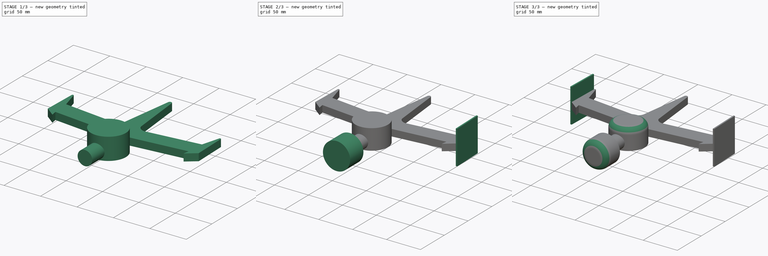
[diagram: build sequence overview — one tinted view per stage of 3, left to right]
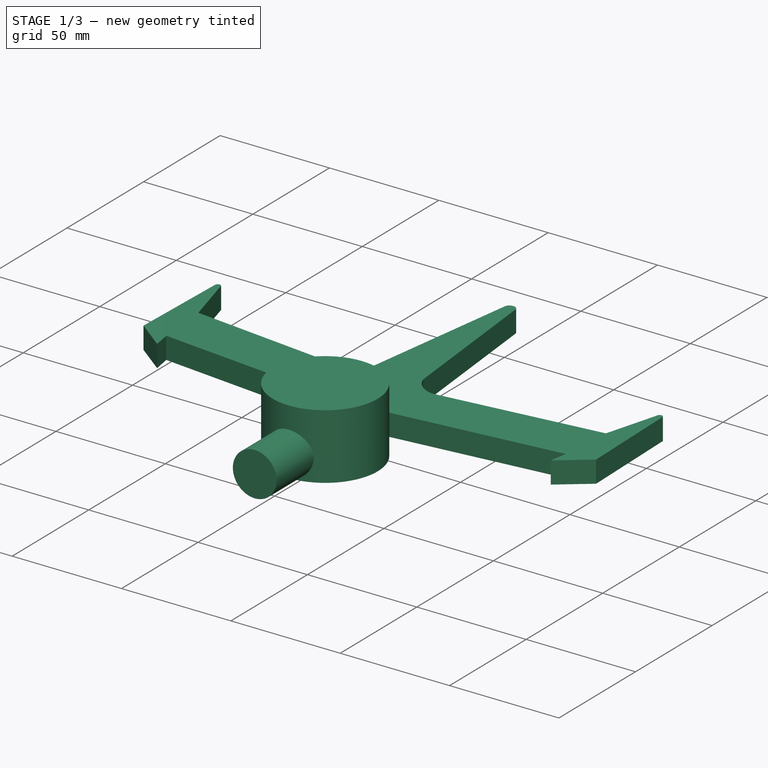
[diagram: stage 1 of 3 — iso view after this stage's code; geometry added in this stage tinted green]
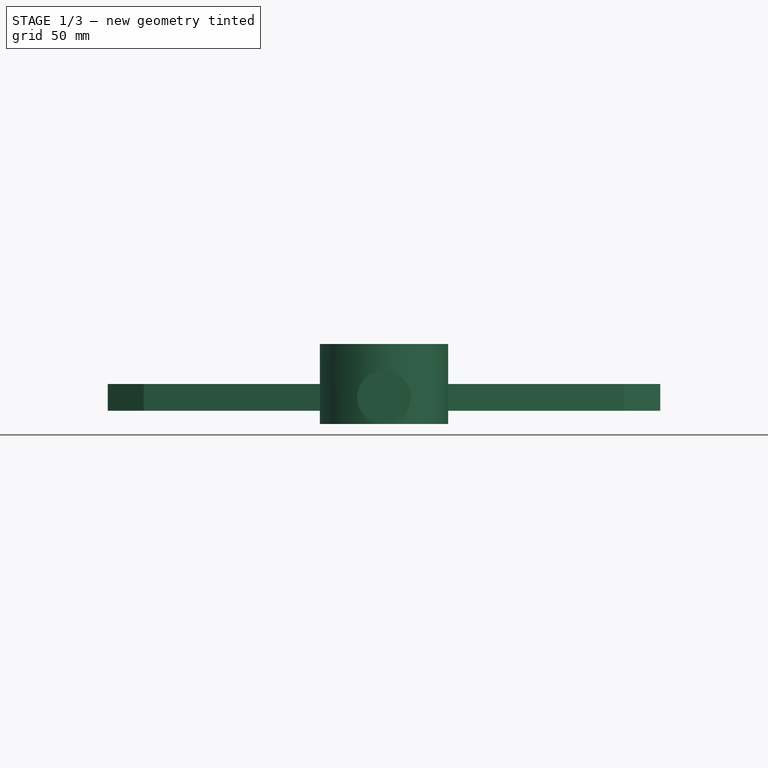
[diagram: stage 1 of 3 — front view after this stage's code; geometry added in this stage tinted green]
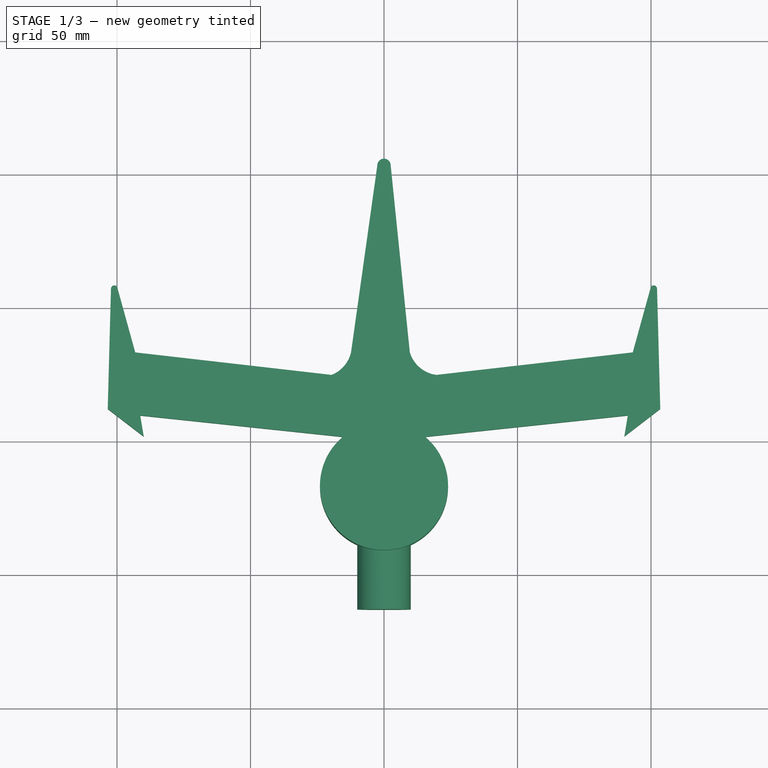
[diagram: stage 1 of 3 — top view after this stage's code; geometry added in this stage tinted green]
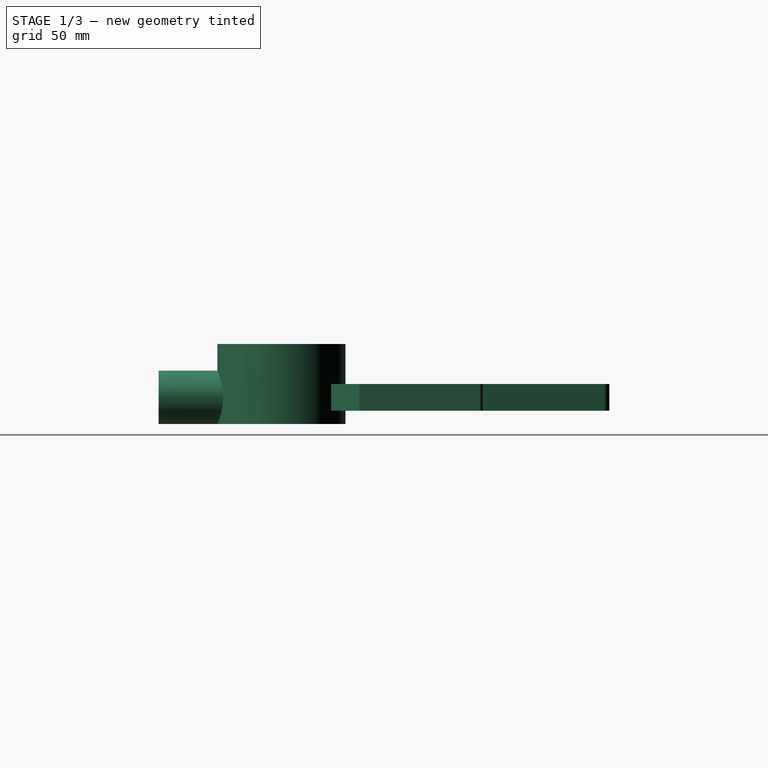
[diagram: stage 1 of 3 — right view after this stage's code; geometry added in this stage tinted green]
FCSTD DOCUMENT  (FreeCAD 1.0R39109 (Git))
Label: playership
License: All rights reserved
objects: Sketcher::SketchObject×6, PartDesign::Pad×6, PartDesign::Fillet×2, Image::ImagePlane×1, PartDesign::Plane×1, PartDesign::Body×1, App::Part×1
note: 38 computed .brp shape members not serialized (recipe doc carries the construction recipe); baked Part::Feature solids carry a one-line shape summary decoded from their .brp

FEATURE [Sketcher::SketchObject] Sketch
  ArcFitTolerance = 1e-06
  AttachmentSupport = -> [XY_Plane001]
  FullyConstrained = true
  MakeInternals = false
  MapMode = 5
  sketch-geometry (19):
    g0: LineSegment StartX=-91.3107 StartY=9.66321 StartZ=0 EndX=0 EndY=0 EndZ=0
    g1: LineSegment StartX=-91.3107 StartY=9.66321 StartZ=0 EndX=-89.9959 EndY=1.77198 EndZ=0
    g2: LineSegment StartX=-89.9959 StartY=1.77198 StartZ=0 EndX=-103.476 EndY=12.1306 EndZ=0
    g3: LineSegment StartX=-103.476 StartY=12.1306 StartZ=0 EndX=-102.265 EndY=57.1143 EndZ=0
    g4: LineSegment StartX=-99.7654 StartY=57.1143 StartZ=0 EndX=-93.1683 EndY=33.2597 EndZ=0
    g5: LineSegment StartX=-93.1683 StartY=33.2597 StartZ=0 EndX=-19.65 EndY=24.8301 EndZ=0
    g6: LineSegment StartX=-12.3363 StartY=33.3301 StartZ=0 EndX=-2.5 EndY=103.33 EndZ=0
    g7: LineSegment StartX=2.5 StartY=103.33 StartZ=0 EndX=9.66371 EndY=33.3301 EndZ=0
    g8: LineSegment StartX=19.65 StartY=24.8301 StartZ=0 EndX=93.1683 EndY=33.2597 EndZ=0
    g9: LineSegment StartX=93.1683 StartY=33.2597 StartZ=0 EndX=99.7654 EndY=57.1143 EndZ=0
    g10: ArcOfCircle CenterX=-101.015 CenterY=57.1143 CenterZ=0 NormalX=0 NormalY=0 NormalZ=1 AngleXU=0 Radius=1.25 StartAngle=1.9e-15 EndAngle=3.14159
    g11: ArcOfCircle CenterX=0 CenterY=103.33 CenterZ=0 NormalX=0 NormalY=0 NormalZ=1 AngleXU=0 Radius=2.5 StartAngle=1e-15 EndAngle=3.14159
    g12: ArcOfCircle CenterX=-24.0355 CenterY=36 CenterZ=0 NormalX=0 NormalY=0 NormalZ=1 AngleXU=0 Radius=12 StartAngle=5.08651 EndAngle=6.05881
    g13: ArcOfCircle CenterX=21.171 CenterY=36.7333 CenterZ=0 NormalX=0 NormalY=0 NormalZ=1 AngleXU=0 Radius=12 StartAngle=3.42914 EndAngle=4.5853
    g14: ArcOfCircle CenterX=101.015 CenterY=57.1143 CenterZ=0 NormalX=0 NormalY=0 NormalZ=1 AngleXU=0 Radius=1.25 StartAngle=0 EndAngle=3.14159
    g15: LineSegment StartX=102.265 StartY=57.1143 StartZ=0 EndX=103.476 EndY=12.1306 EndZ=0
    g16: LineSegment StartX=103.476 StartY=12.1306 StartZ=0 EndX=89.9959 EndY=1.77198 EndZ=0
    g17: LineSegment StartX=89.9959 StartY=1.77198 StartZ=0 EndX=91.3107 EndY=9.66321 EndZ=0
    g18: LineSegment StartX=91.3107 StartY=9.66321 StartZ=0 EndX=0 EndY=0 EndZ=0
  constraints (61):
    c: Coincident(g1,g0)
    c: Coincident(g2,g1)
    c: Coincident(g5,g4)
    c: Coincident(g10,g3)
    c: Coincident(g10,g4)
    c: Coincident(g11,g6)
    c: Coincident(g11,g7)
    c: Horizontal(g6,g7)
    c: Horizontal(g7,g11)
    c: Vertical(g0,g11)
    c: Coincident(g12,g5)
    c: Coincident(g12,g6)
    c: Coincident(g13,g8)
    c: Coincident(g13,g7)
    c: Coincident(g14,g9)
    c: Horizontal(g9,g14)
    c: Horizontal(g14,g14)
    c: Coincident(g2,g3)
    c: Radius(g12) = 12
    c: Radius(g13) = 12
    c: DistanceX(g6,g7) = 22
    c: DistanceY(g5,g6) = 8.5
    c: DistanceY(g8,g7) = 8.5
    c: DistanceX(g5,g8) = 39.3
    c: DistanceY(g6,g6) = 70
    c: Angle(g5,g-1) = 0.114162
    c: Distance(g5) = 74
    c: Angle(g5,g4) = 1.95477
    c: Angle(g3,g4) = 0.296706
    c: Distance(g4) = 24.75
    c: Distance(g3) = 45
    c: Distance(g2) = 17
    c: Distance(g1) = 8
    c: Angle(g2,g3) = 2.19911
    c: Angle(g1,g2) = 0.750492
    c: Angle(g1,g0) = 1.30027
    c: Radius(g10) = 1.25
    c: Horizontal(g10,g4)
    c: Horizontal(g4,g3)
    c: DistanceY(g0,g12) = 36
    c: Angle(g8) = 0.114162
    c: Horizontal(g5,g8)
    c: Coincident(g8,g9)
    c: Distance(g8) = 74
    c: Angle(g9,g8) = 1.95477
    c: Radius(g14) = 1.25
    c: Coincident(g15,g14)
    c: Distance(g15) = 45
    c: Distance(g9) = 24.75
    c: Angle(g9,g15) = 0.296706
    c: Distance(g16) = 17
    c: Coincident(g16,g15)
    c: Angle(g15,g16) = 2.19911
    c: Distance(g17) = 8
    c: Coincident(g17,g16)
    c: Angle(g16,g17) = 0.750492
    c: Coincident(g18,g17)
    c: Coincident(g18,g0)
    c: Coincident(g0,g-1)
    c: Radius(g11) = 2.5
    c: DistanceX(g5,g0) = 19.65
FEATURE [Image::ImagePlane] topship
  XSize = 278.116
  YSize = 197.671
FEATURE [PartDesign::Pad] Pad
  Direction = (0,0,1)
  Length = 10
  Length2 = 10
  Profile = -> Sketch
  ReferenceAxis = -> Sketch [N_Axis]
  Refine = true
  Suppressed = false
  Type = 0
FEATURE [Sketcher::SketchObject] Sketch001
  ArcFitTolerance = 1e-06
  AttachmentSupport = -> [Pad]
  FullyConstrained = true
  MakeInternals = false
  MapMode = 5
  Placement = pos=(0,0,10) rot=(0,0,1;0rad)
  sketch-geometry (1):
    g0: Circle CenterX=0 CenterY=-17 CenterZ=0 NormalX=0 NormalY=0 NormalZ=1 AngleXU=0 Radius=24
  constraints (3):
    c: Radius(g0) = 24
    c: DistanceX(g-1,g0) = 0
    c: DistanceY(g0,g-1) = 17
FEATURE [PartDesign::Pad] Pad001
  BaseFeature = -> Pad
  Direction = (0,0,1)
  Length = 30
  Length2 = 10
  Midplane = true
  Profile = -> Sketch001
  ReferenceAxis = -> Sketch001 [N_Axis]
  Refine = true
  Suppressed = false
  Type = 0
FEATURE [PartDesign::Plane] DatumPlane
  AttachmentOffset = pos=(0,-38,0) rot=(1,0,0;1.5708rad)
  AttachmentSupport = -> [Pad001]
  Length = 227.296
  MapMode = 5
  Placement = pos=(0,-38,25) rot=(1,0,0;1.5708rad)
  ResizeMode = 0
  Width = 70.3446
FEATURE [Sketcher::SketchObject] Sketch002
  ArcFitTolerance = 1e-06
  AttachmentSupport = -> [DatumPlane]
  FullyConstrained = true
  MakeInternals = false
  MapMode = 5
  Placement = pos=(0,-38,25) rot=(1,0,0;1.5708rad)
  sketch-geometry (1):
    g0: Circle CenterX=0 CenterY=-20 CenterZ=0 NormalX=0 NormalY=0 NormalZ=1 AngleXU=0 Radius=10
  constraints (3):
    c: PointOnObject(g0,g-2)
    c: Radius(g0) = 10
    c: DistanceY(g0,g-1) = 20
FEATURE [PartDesign::Pad] Pad002
  BaseFeature = -> Pad001
  Direction = (0,-1,2e-16)
  Length = 25
  Length2 = 10
  Profile = -> Sketch002
  ReferenceAxis = -> Sketch002 [N_Axis]
  Refine = true
  Suppressed = false
  Type = 0
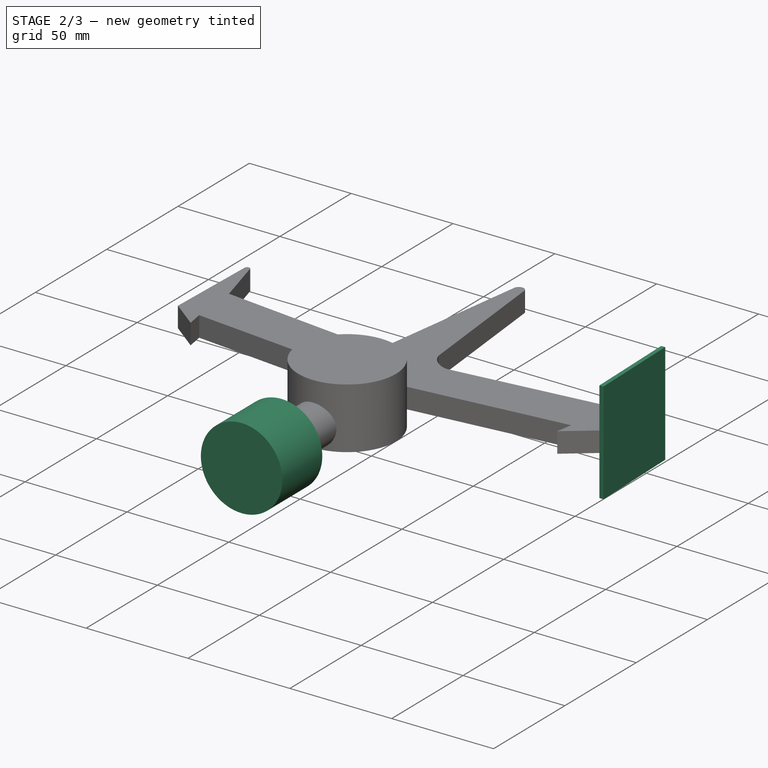
[diagram: stage 2 of 3 — iso view after this stage's code; geometry added in this stage tinted green]
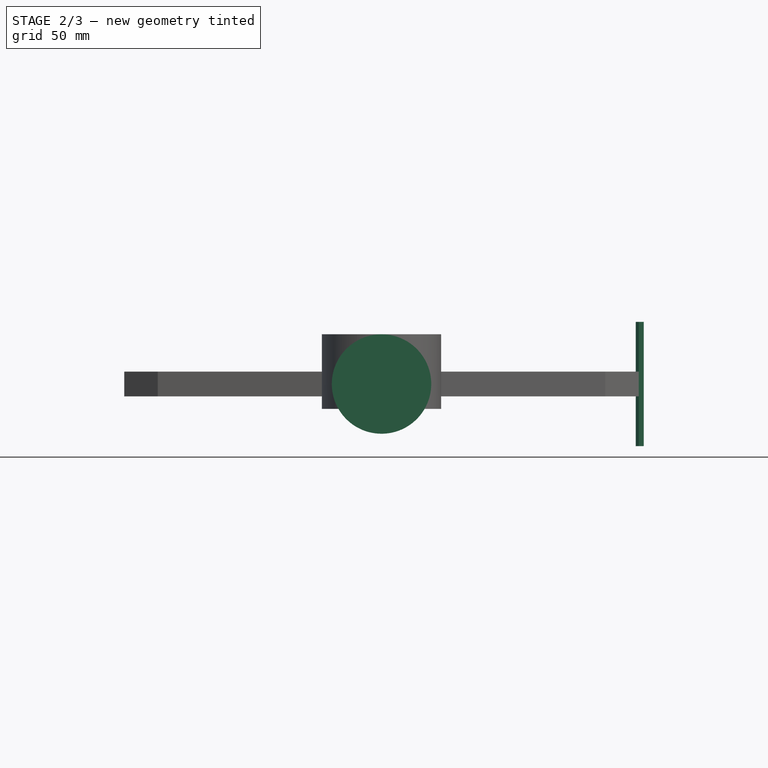
[diagram: stage 2 of 3 — front view after this stage's code; geometry added in this stage tinted green]
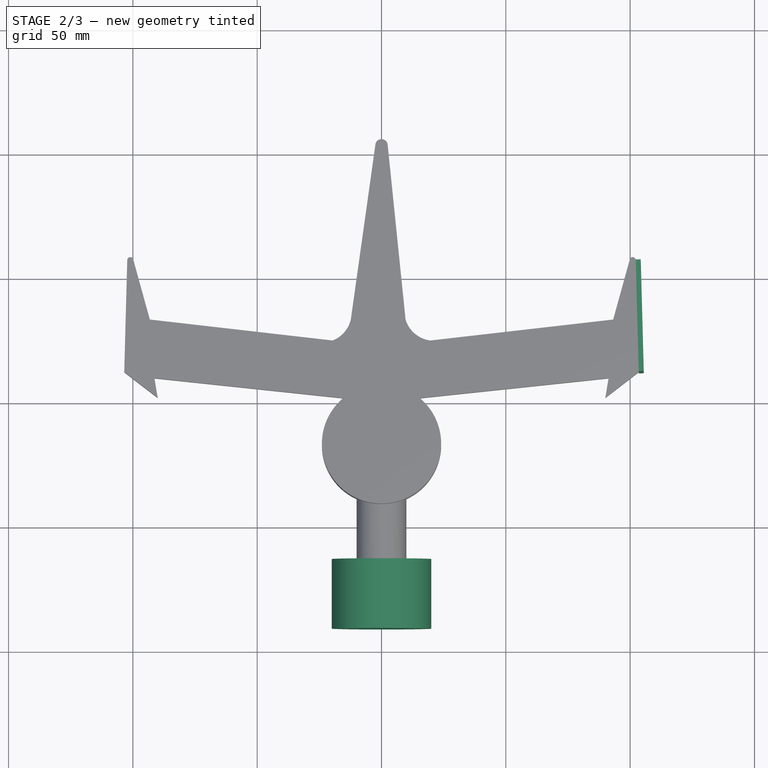
[diagram: stage 2 of 3 — top view after this stage's code; geometry added in this stage tinted green]
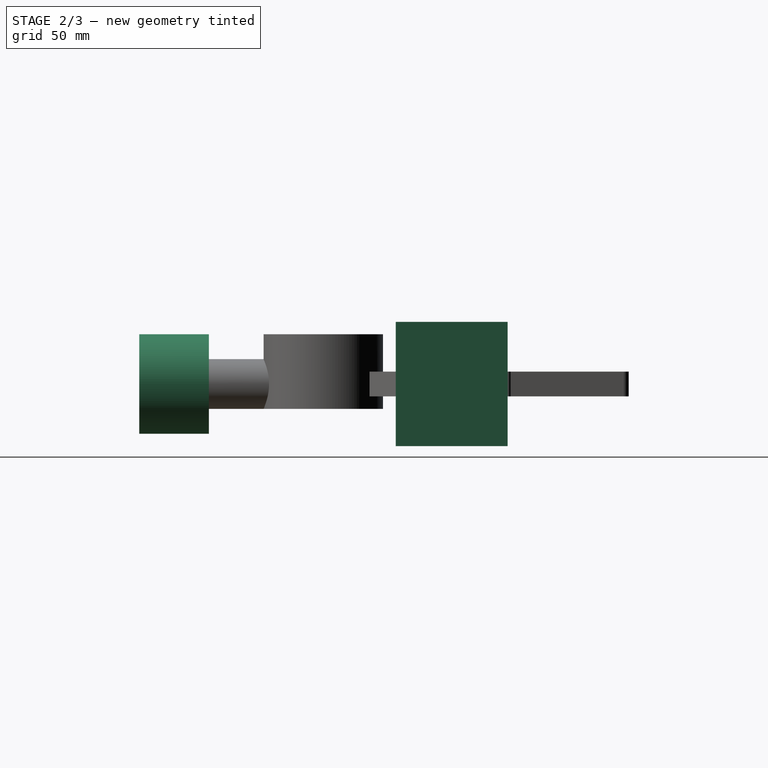
[diagram: stage 2 of 3 — right view after this stage's code; geometry added in this stage tinted green]
FEATURE [Sketcher::SketchObject] Sketch003
  ArcFitTolerance = 1e-06
  AttachmentSupport = -> [Pad002]
  FullyConstrained = true
  MakeInternals = false
  MapMode = 5
  Placement = pos=(-1.49e-14,-63,2.58e-14) rot=(1,0,0;1.5708rad)
  sketch-geometry (1):
    g0: Circle CenterX=0 CenterY=5 CenterZ=0 NormalX=0 NormalY=0 NormalZ=1 AngleXU=0 Radius=20
  constraints (3):
    c: Diameter(g0) = 40
    c: PointOnObject(g0,g-2)
    c: DistanceY(g-1,g0) = 5
FEATURE [PartDesign::Pad] Pad003
  BaseFeature = -> Pad002
  Direction = (0,-1,2e-16)
  Length = 28
  Length2 = 10
  Profile = -> Sketch003
  ReferenceAxis = -> Sketch003 [N_Axis]
  Refine = true
  Suppressed = false
  Type = 0
FEATURE [Sketcher::SketchObject] Sketch004
  ArcFitTolerance = 1e-06
  AttachmentSupport = -> [Pad003]
  FullyConstrained = true
  MakeInternals = false
  MapMode = 5
  Placement = pos=(103.727,2.79046,0) rot=(0.566999,0.582457,0.582457;2.10999rad)
  sketch-geometry (4):
    g0: LineSegment StartX=9.33 StartY=-20 StartZ=0 EndX=54.33 EndY=-20 EndZ=0
    g1: LineSegment StartX=54.33 StartY=-20 StartZ=0 EndX=54.33 EndY=30 EndZ=0
    g2: LineSegment StartX=54.33 StartY=30 StartZ=0 EndX=9.33 EndY=30 EndZ=0
    g3: LineSegment StartX=9.33 StartY=30 StartZ=0 EndX=9.33 EndY=-20 EndZ=0
  constraints (12):
    c: Coincident(g0,g1)
    c: Coincident(g1,g2)
    c: Coincident(g2,g3)
    c: Coincident(g3,g0)
    c: Horizontal(g0)
    c: Horizontal(g2)
    c: Vertical(g1)
    c: Vertical(g3)
    c: Distance(g1,g3) = 45
    c: Distance(g0,g2) = 50
    c: DistanceY(g0,g-1) = 20
    c: DistanceX(g-1,g0) = 9.33
FEATURE [PartDesign::Pad] Pad004
  BaseFeature = -> Pad003
  Direction = (0.999638,0.0268923,-1e-16)
  Length = 2
  Length2 = 10
  Profile = -> Sketch004
  ReferenceAxis = -> Sketch004 [N_Axis]
  Refine = true
  Suppressed = false
  Type = 0
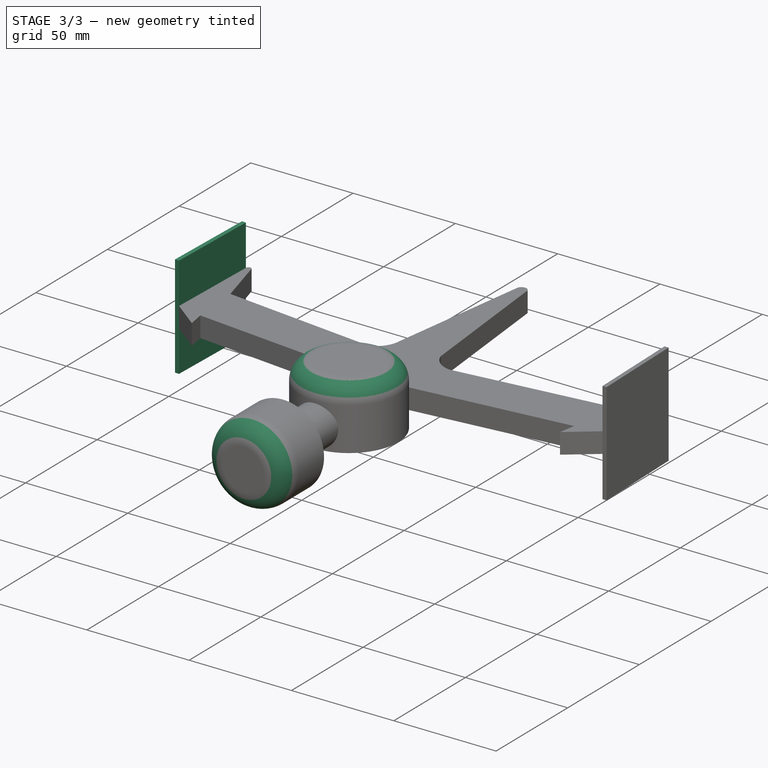
[diagram: stage 3 of 3 — iso view after this stage's code; geometry added in this stage tinted green]
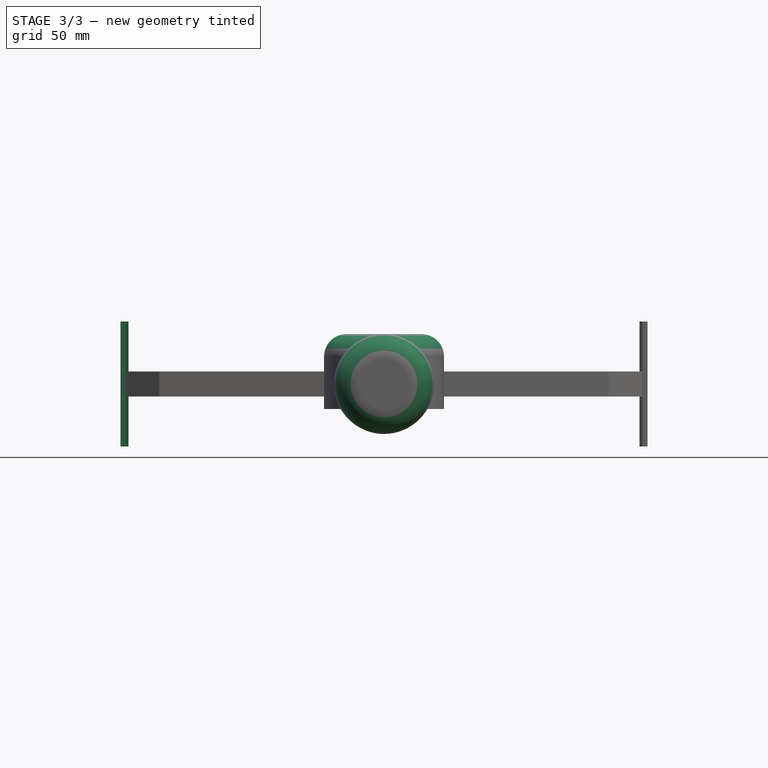
[diagram: stage 3 of 3 — front view after this stage's code; geometry added in this stage tinted green]
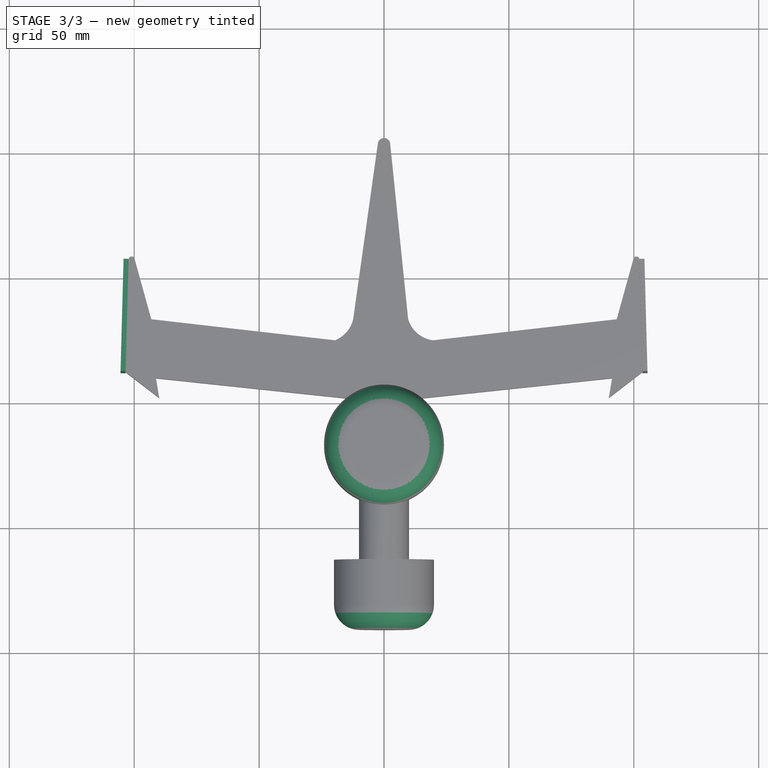
[diagram: stage 3 of 3 — top view after this stage's code; geometry added in this stage tinted green]
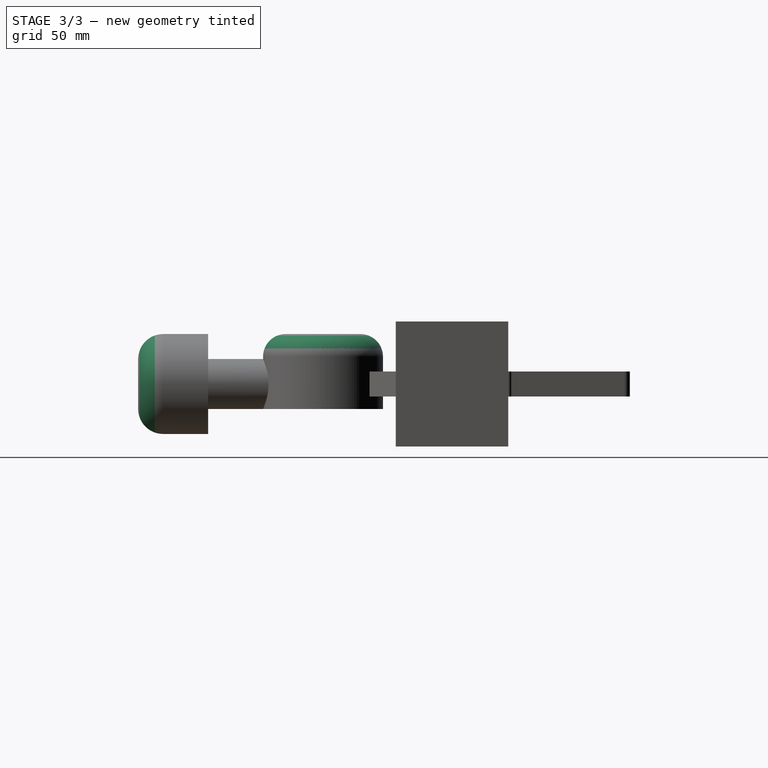
[diagram: stage 3 of 3 — right view after this stage's code; geometry added in this stage tinted green]
FEATURE [Sketcher::SketchObject] Sketch005
  ArcFitTolerance = 1e-06
  AttachmentSupport = -> [Pad004]
  FullyConstrained = true
  MakeInternals = false
  MapMode = 5
  Placement = pos=(-103.727,2.79046,0) rot=(0.587702,0.572104,0.572104;2.07894rad)
  sketch-geometry (4):
    g0: LineSegment StartX=9.33 StartY=-20 StartZ=0 EndX=54.33 EndY=-20 EndZ=0
    g1: LineSegment StartX=54.33 StartY=-20 StartZ=0 EndX=54.33 EndY=30 EndZ=0
    g2: LineSegment StartX=54.33 StartY=30 StartZ=0 EndX=9.33 EndY=30 EndZ=0
    g3: LineSegment StartX=9.33 StartY=30 StartZ=0 EndX=9.33 EndY=-20 EndZ=0
  constraints (12):
    c: Coincident(g0,g1)
    c: Coincident(g1,g2)
    c: Coincident(g2,g3)
    c: Coincident(g3,g0)
    c: Horizontal(g0)
    c: Horizontal(g2)
    c: Vertical(g1)
    c: Vertical(g3)
    c: Distance(g1,g3) = 45
    c: Distance(g0,g2) = 50
    c: DistanceY(g0,g-1) = 20
    c: DistanceX(g-1,g0) = 9.33
FEATURE [PartDesign::Pad] Pad005
  BaseFeature = -> Pad004
  Direction = (0.999638,-0.0268923,-1e-16)
  Length = 2
  Length2 = 10
  Profile = -> Sketch005
  ReferenceAxis = -> Sketch005 [N_Axis]
  Refine = true
  Reversed = true
  Suppressed = false
  Type = 0
FEATURE [PartDesign::Fillet] Fillet
  Base = -> Pad005 [Edge104]
  BaseFeature = -> Pad005
  Radius = 10
  Refine = true
  SupportTransform = false
  Suppressed = false
  UseAllEdges = false
FEATURE [PartDesign::Fillet] Fillet001
  Base = -> Fillet [Edge11]
  BaseFeature = -> Fillet
  Radius = 9
  Refine = true
  SupportTransform = false
  Suppressed = false
  UseAllEdges = false
FEATURE [PartDesign::Body] Body  label="Cuerpo"
  AllowCompound = false
  Group = -> [Sketch,Pad,Sketch001,Pad001,DatumPlane,Sketch002,Pad002,Sketch003,Pad003,Sketch004,Pad004,Sketch005,Pad005,Fillet,Fillet001]
  Origin = -> Origin001
  Tip = -> Fillet001
FEATURE [App::Part] Part
  Group = -> [Body]
  Origin = -> Origin
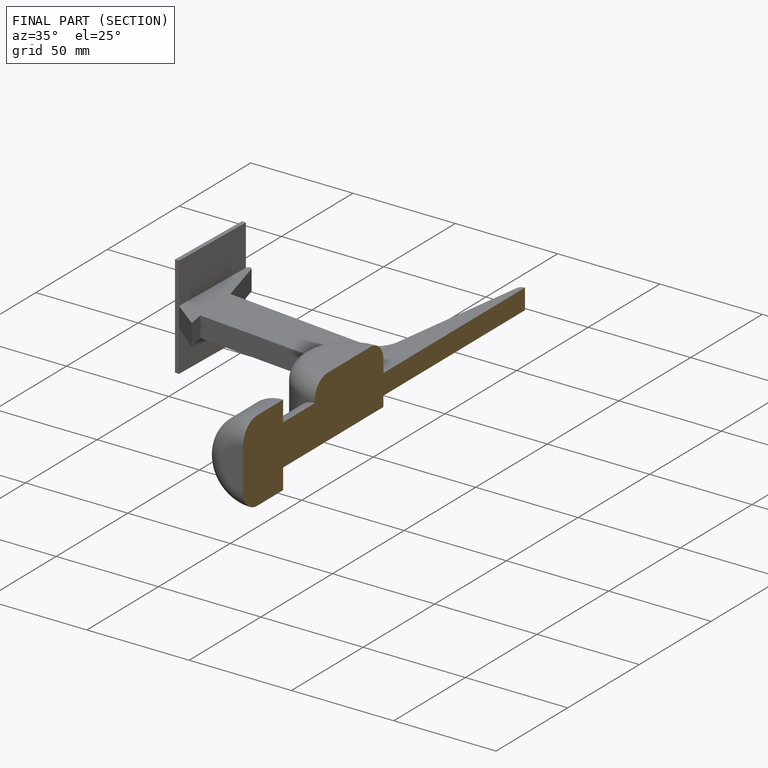
[diagram: finished part — half-section view (interior)]
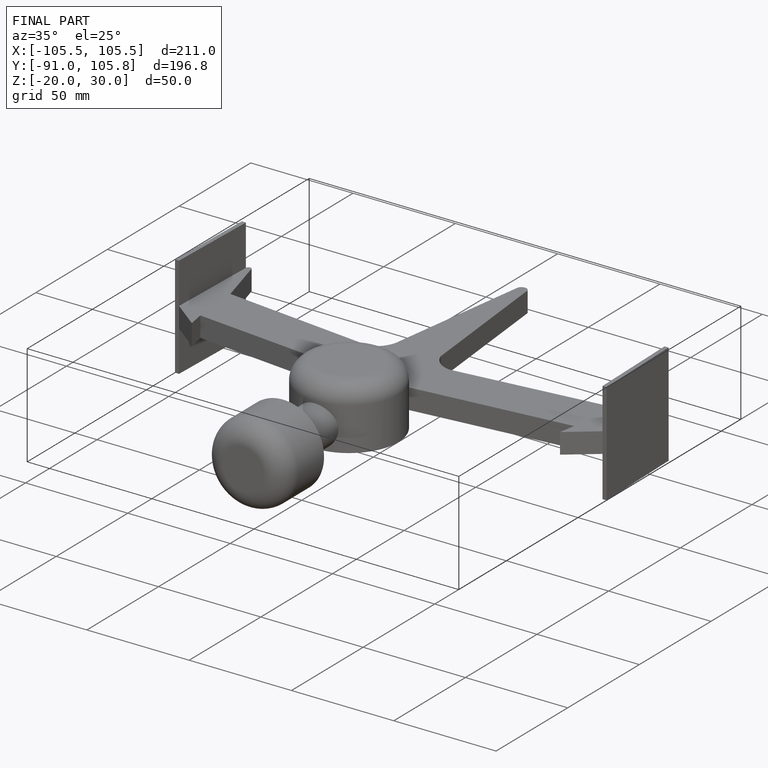
[diagram: finished part — iso view with bounding-box wireframe]
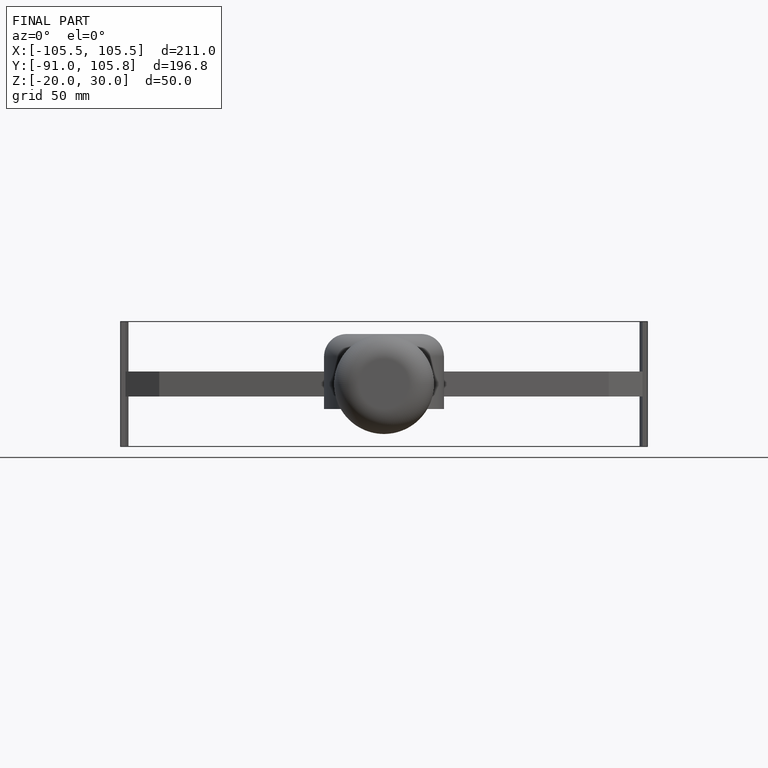
[diagram: finished part — front view with bounding-box wireframe]
